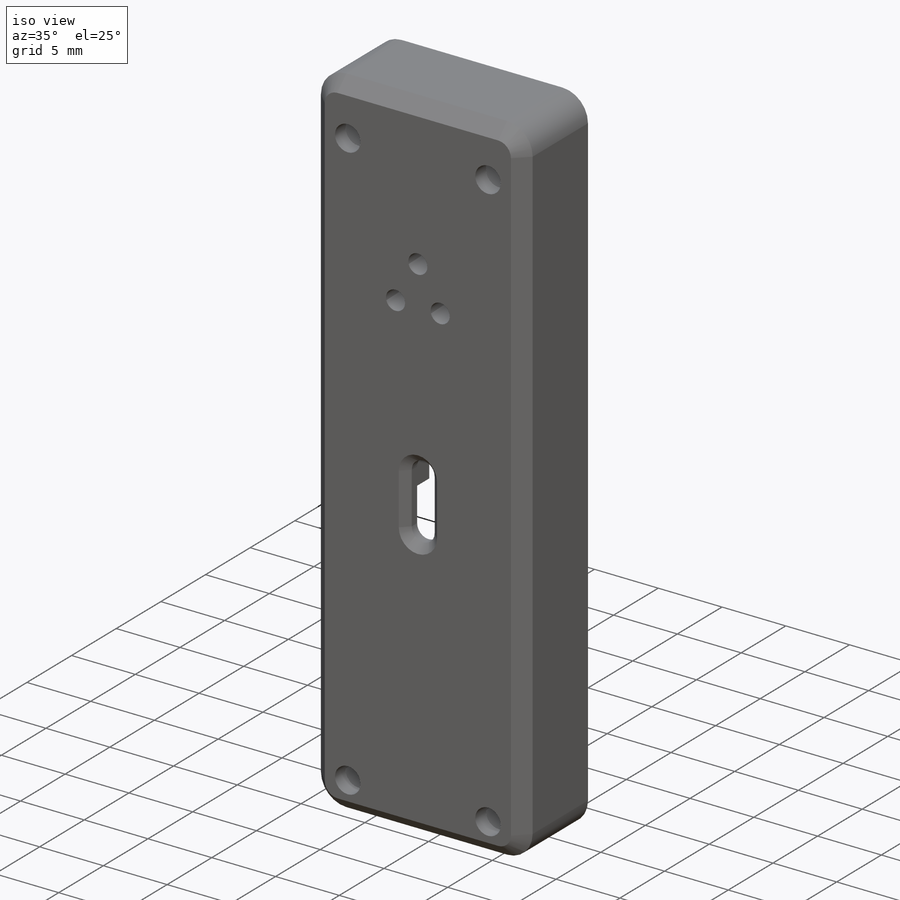
[diagram: iso view]
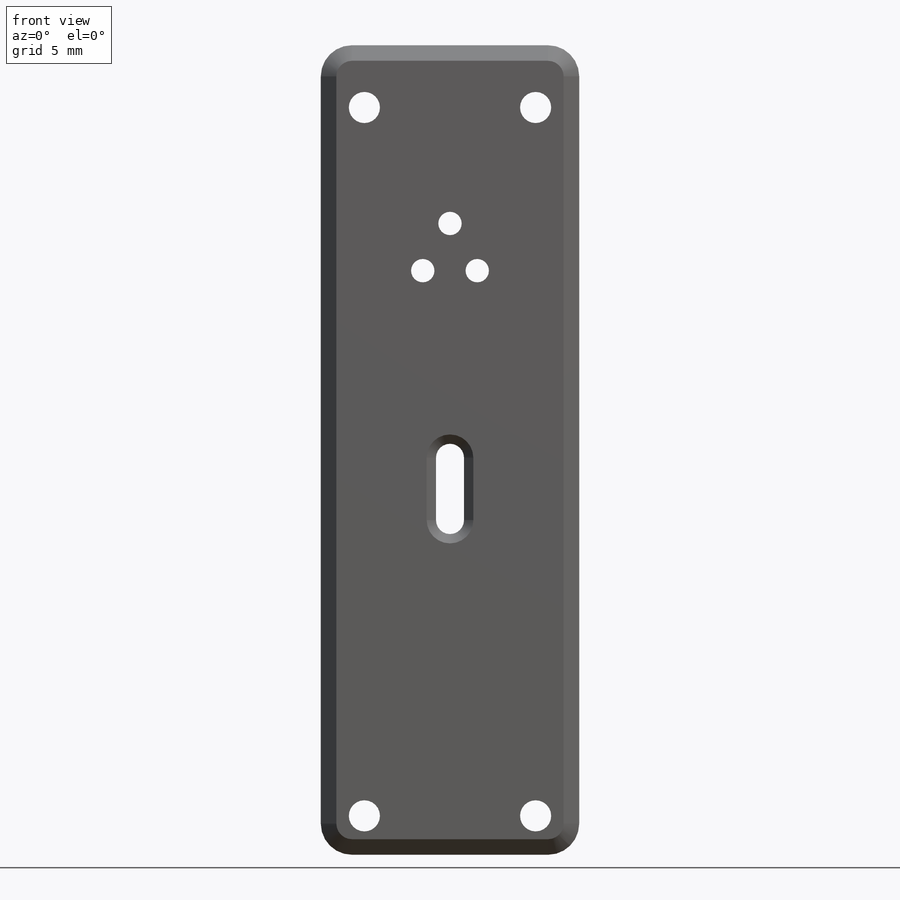
[diagram: front view]
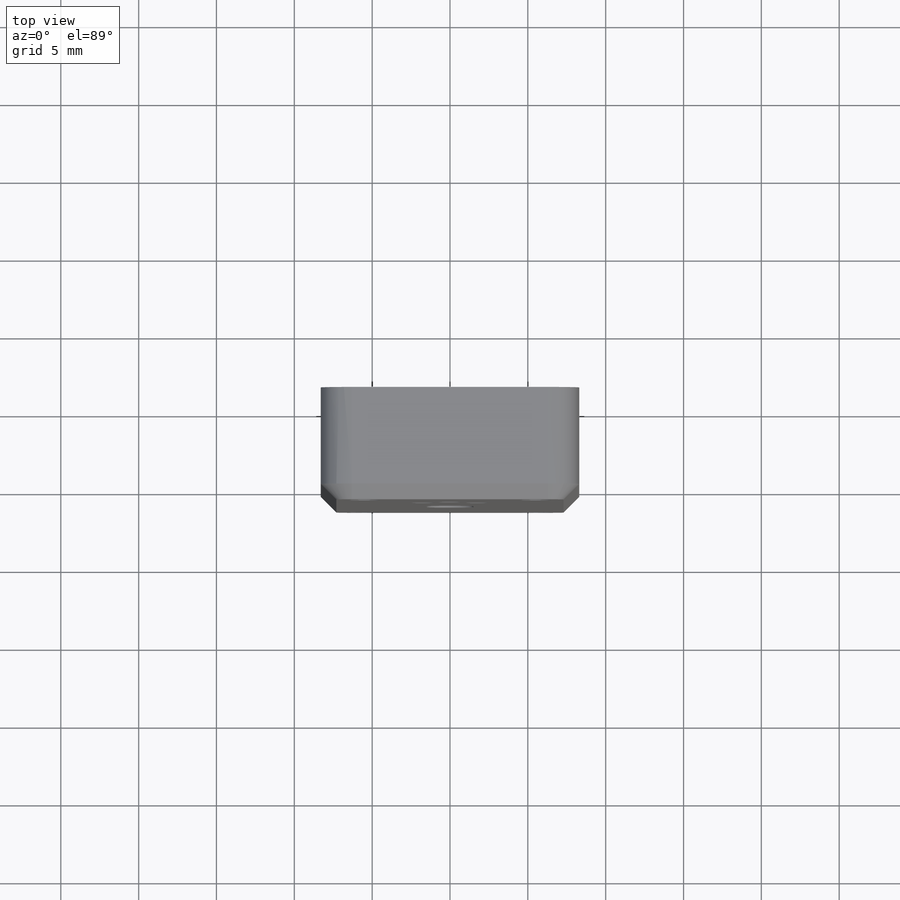
[diagram: top view]
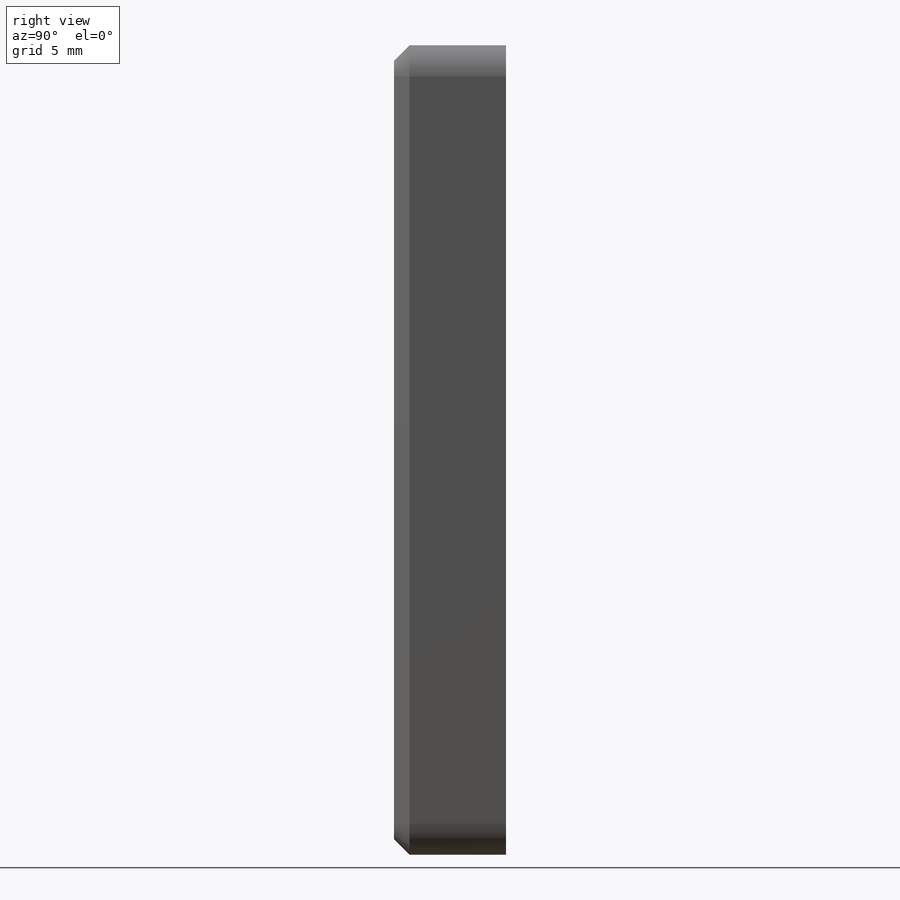
[diagram: right view]
SOLIDWORKS PART (.sldprt)
format: sldprt  version: not decoded by parser v0  size: 718,848 bytes
history: native  units: mm
features: sketch x9, cut_extrude x5, plane x4, extrude x4, chamfer x2, fillet x2, material x1 (+10 scaffold rows collapsed)
feature tree (37):
  scaffold x10  (default folders/planes/origin — collapsed)
  material  "材质 <未指定>"
  plane  "前视基准面"
  plane  "上视基准面"
  plane  "右视基准面"
  sketch  "草图1"  dims[D1=1.2mm D2=13.0mm D3=1.8mm D4=6.0mm]
  extrude  "凸台-拉伸1"  Depth=34mm
  sketch  "草图2"
  extrude  "凸台-拉伸2"  Depth=52mm
  sketch  "草图4"  dims[c1.D1=4.5mm c1.D2=1.8mm c1.D3=23.0mm c2.D1=23.5mm c2.D2=1.8mm c2.D3=4.0mm]
  cut_extrude  "切除-拉伸2"  [1 undecoded]
  chamfer  "倒角1"  Distance=0.6mm Angle=45deg
  plane  "基准面1"  Offset=23.5mm
  sketch  "草图5"  dims[D1=8.3mm D2=0.6mm D3=2.0mm]
  extrude  "凸台-拉伸4"  Depth=4mm
  sketch  "草图8"  dims[D1=3.2mm D2=5.0mm D3=11.0mm D4=3.0mm]
  extrude  "凸台-拉伸5"  [1 undecoded]
  cut_extrude  "切除-拉伸4"  [1 undecoded]
  sketch  "草图8<2>"
  sketch  "草图9"  dims[D1=2.0mm D2=4.0mm]
  cut_extrude  "切除-拉伸5"  Depth=4mm
  sketch  "草图10"  dims[D1=3.3mm]
  cut_extrude  "切除-拉伸6"  [1 undecoded]
  fillet  "圆角1"  Radius=2mm
  sketch  "草图13"  dims[D1=1.5mm D2=3.5mm]
  cut_extrude  "切除-拉伸9"  [1 undecoded]
  fillet  "圆角2"  Radius=2mm
  chamfer  "倒角2"  Distance=1mm Angle=45deg
decode coverage: 15 of 22 modeling features carry decoded parameters
note: 5 parameter values undecoded
summary: no parameter record found for 5 features
note: suppression state not decoded; provenance and decode notes live in map.json
